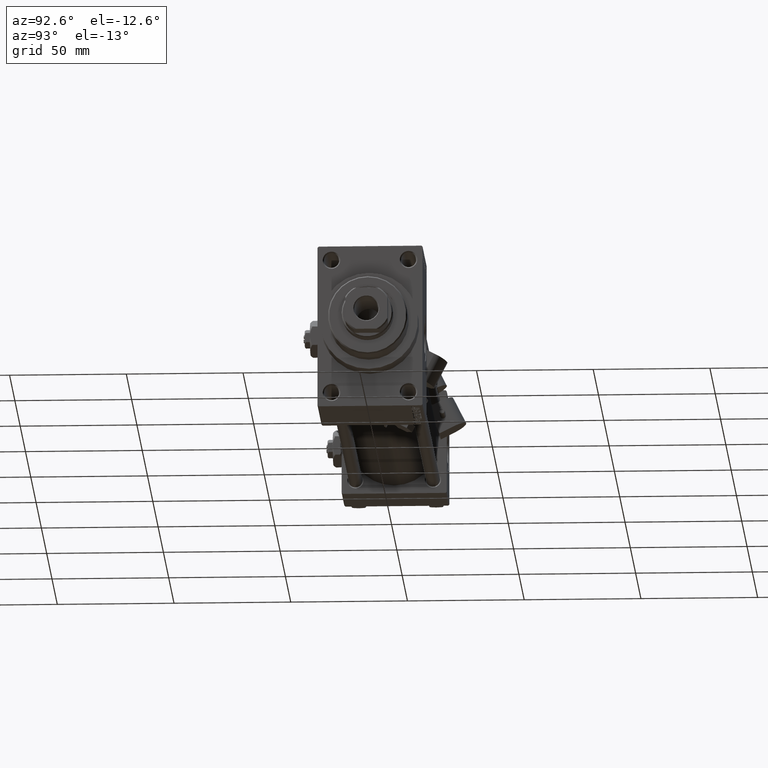
[diagram: clean part render]
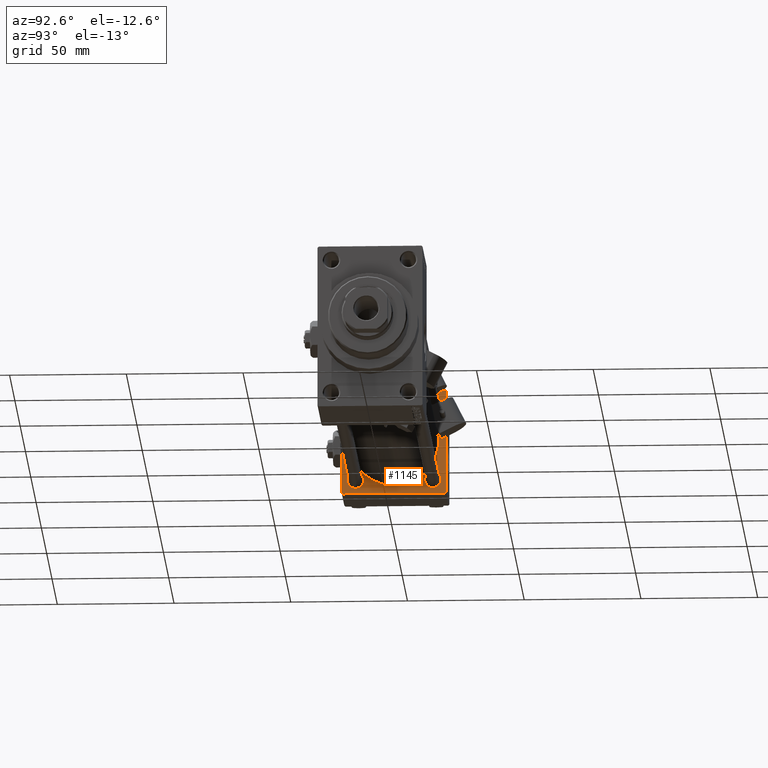
[diagram: same view with one face highlighted and labeled with its STEP entity id]
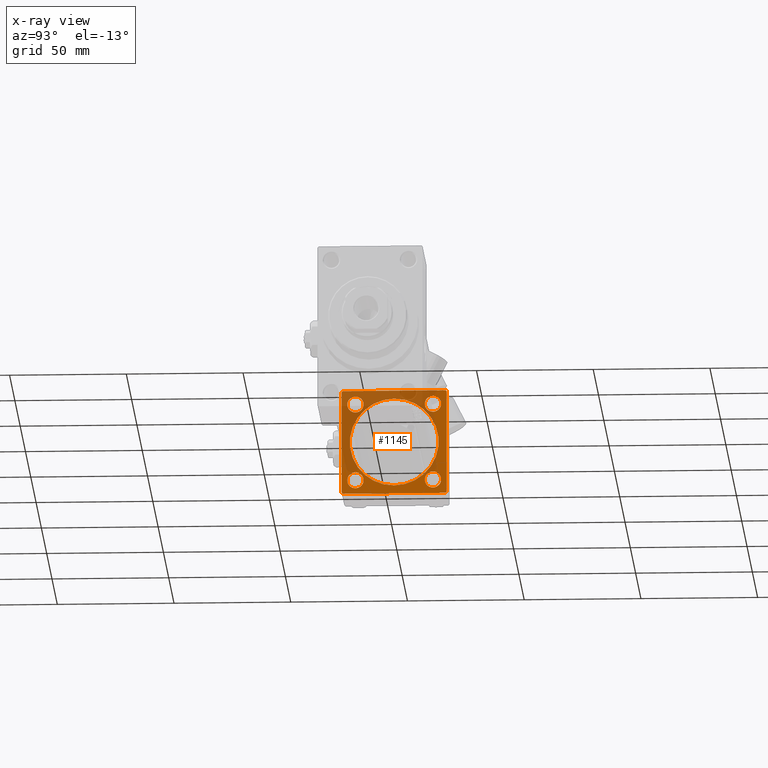
[diagram: x-ray of the same camera — body ghosted, the highlighted face saturated]
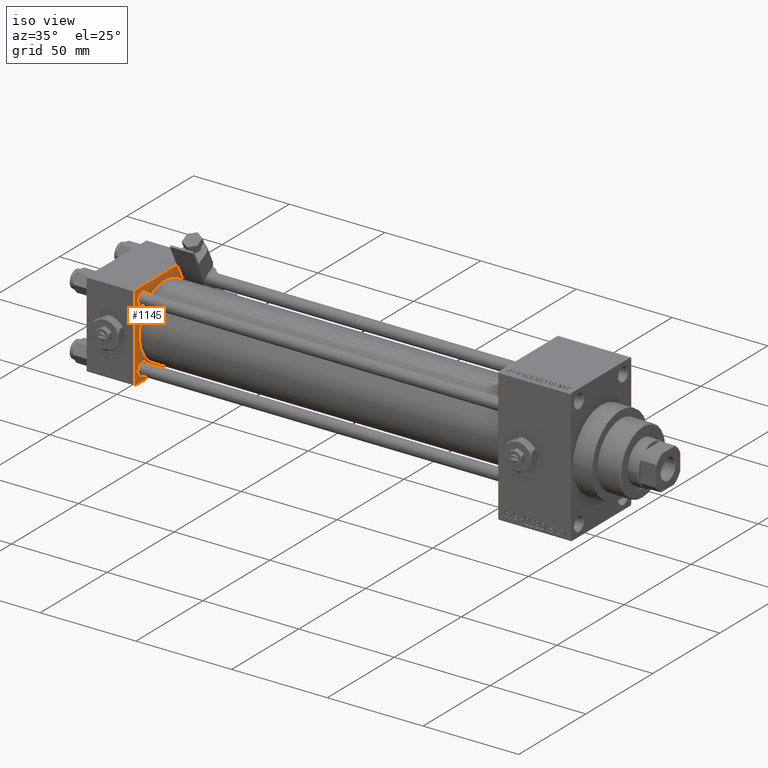
[diagram: same view with one face highlighted and labeled with its STEP entity id]
A machine part, auxiliary view. The second image highlights one B-rep face of the part: STEP entity #1145.
The next image is the same camera in x-ray: the body ghosted, the highlighted face saturated — about 46% of this face is hidden behind the body in this view.
A second angle (iso view) of the same face is appended — the face is thin or edge-on in the first view.
In plain terms, the highlighted planar face has unit normal (-1, 0, 0).
Its self-contained STEP definition (entity closure, byte-faithful):
#144 = EDGE_CURVE ( 'NONE', #49883, #3876, #7440, .T. ) ;
#197 = CARTESIAN_POINT ( 'NONE',  ( 25.00000000000000000, -21.99999999999998579, -22.50000000000000711 ) ) ;
#599 = CARTESIAN_POINT ( 'NONE',  ( 25.00000000000000000, 22.50000000000000000, -21.99999999999998224 ) ) ;
#1104 = EDGE_CURVE ( 'NONE', #25823, #12762, #6916, .T. ) ;
#1145 = ADVANCED_FACE ( 'NONE', ( #11481, #34028, #42136, #49489, #26920, #7427 ), #30969, .F. ) ;
#1404 = ORIENTED_EDGE ( 'NONE', *, *, #27930, .T. ) ;
#1473 = AXIS2_PLACEMENT_3D ( 'NONE', #17803, #33266, #48742 ) ;
#1567 = EDGE_CURVE ( 'NONE', #38884, #43466, #37309, .T. ) ;
#1682 = EDGE_CURVE ( 'NONE', #3876, #49883, #12207, .T. ) ;
#1722 = ORIENTED_EDGE ( 'NONE', *, *, #9139, .T. ) ;
#2251 = DIRECTION ( 'NONE',  ( 0.000000000000000000, -1.000000000000000000, -2.312964634635742957E-16 ) ) ;
#2853 = CARTESIAN_POINT ( 'NONE',  ( 25.00000000000000000, -22.50000000000000000, 22.50000000000000000 ) ) ;
#3351 = DIRECTION ( 'NONE',  ( -0.000000000000000000, 0.000000000000000000, 1.000000000000000000 ) ) ;
#3876 = VERTEX_POINT ( 'NONE', #17896 ) ;
#4282 = ORIENTED_EDGE ( 'NONE', *, *, #12914, .T. ) ;
#4428 = ORIENTED_EDGE ( 'NONE', *, *, #28726, .T. ) ;
#4611 = VECTOR ( 'NONE', #39602, 1000.000000000000114 ) ;
#4705 = DIRECTION ( 'NONE',  ( -1.000000000000000000, 0.000000000000000000, -0.000000000000000000 ) ) ;
#4968 = CARTESIAN_POINT ( 'NONE',  ( 25.00000000000000000, 16.59999999999999787, 13.09999999999997300 ) ) ;
#5723 = VECTOR ( 'NONE', #18557, 1000.000000000000000 ) ;
#6071 = EDGE_CURVE ( 'NONE', #14254, #45123, #36756, .T. ) ;
#6322 = VERTEX_POINT ( 'NONE', #13428 ) ;
#6423 = CARTESIAN_POINT ( 'NONE',  ( 25.00000000000000000, -16.59999999999999076, 16.60000000000000853 ) ) ;
#6797 = DIRECTION ( 'NONE',  ( 1.000000000000000000, -0.000000000000000000, 0.000000000000000000 ) ) ;
#6916 = LINE ( 'NONE', #2853, #5723 ) ;
#7427 = FACE_OUTER_BOUND ( 'NONE', #7838, .T. ) ;
#7440 = CIRCLE ( 'NONE', #24414, 3.500000000000006661 ) ;
#7550 = CIRCLE ( 'NONE', #35856, 19.00000000000000000 ) ;
#7838 = EDGE_LOOP ( 'NONE', ( #7965, #4282, #33883, #1404, #17430, #44860, #34199, #38688 ) ) ;
#7965 = ORIENTED_EDGE ( 'NONE', *, *, #49190, .F. ) ;
#8466 = LINE ( 'NONE', #599, #29688 ) ;
#8484 = LINE ( 'NONE', #28223, #45498 ) ;
#8950 = CARTESIAN_POINT ( 'NONE',  ( 25.00000000000000000, 21.99999999999999289, 22.50000000000000355 ) ) ;
#9139 = EDGE_CURVE ( 'NONE', #43466, #38884, #20674, .T. ) ;
#9516 = CIRCLE ( 'NONE', #20812, 3.500000000000031086 ) ;
#9601 = VERTEX_POINT ( 'NONE', #49662 ) ;
#9731 = DIRECTION ( 'NONE',  ( 0.000000000000000000, 0.000000000000000000, 1.000000000000000000 ) ) ;
#10551 = EDGE_CURVE ( 'NONE', #12762, #49339, #34919, .T. ) ;
#10769 = LINE ( 'NONE', #25960, #41443 ) ;
#11102 = DIRECTION ( 'NONE',  ( 0.000000000000000000, 0.000000000000000000, 1.000000000000000000 ) ) ;
#11481 = FACE_BOUND ( 'NONE', #21512, .T. ) ;
#11808 = VECTOR ( 'NONE', #38723, 1000.000000000000000 ) ;
#11835 = DIRECTION ( 'NONE',  ( 0.000000000000000000, 0.000000000000000000, 1.000000000000000000 ) ) ;
#12207 = CIRCLE ( 'NONE', #17874, 3.500000000000006661 ) ;
#12573 = CARTESIAN_POINT ( 'NONE',  ( 25.00000000000000000, 16.59999999999999787, -16.60000000000000497 ) ) ;
#12762 = VERTEX_POINT ( 'NONE', #28506 ) ;
#12914 = EDGE_CURVE ( 'NONE', #24933, #19423, #8466, .T. ) ;
#12946 = CARTESIAN_POINT ( 'NONE',  ( 24.99999999999999289, -2.602085213965210642E-15, 19.00000000000000000 ) ) ;
#13428 = CARTESIAN_POINT ( 'NONE',  ( 25.00000000000000000, -21.99999999999997868, 22.50000000000000000 ) ) ;
#13465 = CARTESIAN_POINT ( 'NONE',  ( 24.99999999999999289, -2.602085213965210642E-15, 0.000000000000000000 ) ) ;
#13787 = DIRECTION ( 'NONE',  ( 0.000000000000000000, 0.000000000000000000, 1.000000000000000000 ) ) ;
#14254 = VERTEX_POINT ( 'NONE', #4968 ) ;
#14292 = DIRECTION ( 'NONE',  ( -1.000000000000000000, 0.000000000000000000, -0.000000000000000000 ) ) ;
#14450 = EDGE_LOOP ( 'NONE', ( #20937, #33612 ) ) ;
#14774 = CARTESIAN_POINT ( 'NONE',  ( 25.00000000000000000, 0.000000000000000000, 0.000000000000000000 ) ) ;
#15451 = EDGE_LOOP ( 'NONE', ( #37636, #4428 ) ) ;
#15735 = CARTESIAN_POINT ( 'NONE',  ( 25.00000000000000000, -16.59999999999999076, 13.10000000000000142 ) ) ;
#16114 = VERTEX_POINT ( 'NONE', #42391 ) ;
#16838 = CIRCLE ( 'NONE', #27363, 3.500000000000031086 ) ;
#17254 = DIRECTION ( 'NONE',  ( 0.000000000000000000, 0.000000000000000000, 1.000000000000000000 ) ) ;
#17430 = ORIENTED_EDGE ( 'NONE', *, *, #22084, .T. ) ;
#17750 = VECTOR ( 'NONE', #40257, 1000.000000000000000 ) ;
#17803 = CARTESIAN_POINT ( 'NONE',  ( 25.00000000000000000, 16.59999999999999787, -16.60000000000000497 ) ) ;
#17874 = AXIS2_PLACEMENT_3D ( 'NONE', #6423, #14292, #25167 ) ;
#17896 = CARTESIAN_POINT ( 'NONE',  ( 25.00000000000000000, -16.59999999999999076, 20.10000000000001208 ) ) ;
#18130 = EDGE_CURVE ( 'NONE', #45123, #14254, #9516, .T. ) ;
#18557 = DIRECTION ( 'NONE',  ( 0.000000000000000000, 0.000000000000000000, -1.000000000000000000 ) ) ;
#18720 = EDGE_CURVE ( 'NONE', #9601, #16114, #33817, .T. ) ;
#19150 = DIRECTION ( 'NONE',  ( 0.000000000000000000, 0.000000000000000000, 1.000000000000000000 ) ) ;
#19423 = VERTEX_POINT ( 'NONE', #46252 ) ;
#19603 = DIRECTION ( 'NONE',  ( -0.000000000000000000, 0.7071067811865426878, 0.7071067811865524577 ) ) ;
#20483 = DIRECTION ( 'NONE',  ( 0.000000000000000000, 0.000000000000000000, 1.000000000000000000 ) ) ;
#20674 = CIRCLE ( 'NONE', #48191, 3.500000000000003109 ) ;
#20812 = AXIS2_PLACEMENT_3D ( 'NONE', #28967, #36841, #13787 ) ;
#20860 = DIRECTION ( 'NONE',  ( 0.000000000000000000, 0.000000000000000000, -1.000000000000000000 ) ) ;
#20937 = ORIENTED_EDGE ( 'NONE', *, *, #6071, .T. ) ;
#20994 = LINE ( 'NONE', #21994, #37600 ) ;
#21304 = ORIENTED_EDGE ( 'NONE', *, *, #144, .T. ) ;
#21512 = EDGE_LOOP ( 'NONE', ( #50151, #1722 ) ) ;
#21912 = AXIS2_PLACEMENT_3D ( 'NONE', #48759, #33286, #9731 ) ;
#21994 = CARTESIAN_POINT ( 'NONE',  ( 25.00000000000000000, 22.50000000000000000, -22.49999999999999645 ) ) ;
#22084 = EDGE_CURVE ( 'NONE', #24150, #6322, #24784, .T. ) ;
#22850 = DIRECTION ( 'NONE',  ( -1.000000000000000000, 0.000000000000000000, -0.000000000000000000 ) ) ;
#22944 = DIRECTION ( 'NONE',  ( -1.000000000000000000, 0.000000000000000000, -0.000000000000000000 ) ) ;
#23171 = EDGE_CURVE ( 'NONE', #42171, #31878, #43739, .T. ) ;
#24150 = VERTEX_POINT ( 'NONE', #46401 ) ;
#24414 = AXIS2_PLACEMENT_3D ( 'NONE', #27841, #28834, #20483 ) ;
#24784 = LINE ( 'NONE', #44813, #17750 ) ;
#24933 = VERTEX_POINT ( 'NONE', #32308 ) ;
#25167 = DIRECTION ( 'NONE',  ( 0.000000000000000000, 0.000000000000000000, 1.000000000000000000 ) ) ;
#25339 = VERTEX_POINT ( 'NONE', #36749 ) ;
#25823 = VERTEX_POINT ( 'NONE', #45305 ) ;
#25874 = DIRECTION ( 'NONE',  ( -1.000000000000000000, 0.000000000000000000, -0.000000000000000000 ) ) ;
#25960 = CARTESIAN_POINT ( 'NONE',  ( 25.00000000000000000, -22.50000000000000000, 22.00000000000000000 ) ) ;
#26920 = FACE_BOUND ( 'NONE', #34451, .T. ) ;
#27363 = AXIS2_PLACEMENT_3D ( 'NONE', #12573, #22944, #19150 ) ;
#27841 = CARTESIAN_POINT ( 'NONE',  ( 25.00000000000000000, -16.59999999999999076, 16.60000000000000853 ) ) ;
#27930 = EDGE_CURVE ( 'NONE', #25339, #24150, #31488, .T. ) ;
#28223 = CARTESIAN_POINT ( 'NONE',  ( 25.00000000000000000, 22.50000000000000000, 22.50000000000000355 ) ) ;
#28506 = CARTESIAN_POINT ( 'NONE',  ( 25.00000000000000000, -22.50000000000000000, -21.99999999999997158 ) ) ;
#28726 = EDGE_CURVE ( 'NONE', #16114, #9601, #16838, .T. ) ;
#28834 = DIRECTION ( 'NONE',  ( -1.000000000000000000, 0.000000000000000000, -0.000000000000000000 ) ) ;
#28967 = CARTESIAN_POINT ( 'NONE',  ( 25.00000000000000000, 16.59999999999999787, 16.60000000000000497 ) ) ;
#29688 = VECTOR ( 'NONE', #19603, 1000.000000000000000 ) ;
#30341 = CARTESIAN_POINT ( 'NONE',  ( 24.99999999999999289, -2.602085213965210642E-15, 0.000000000000000000 ) ) ;
#30350 = CARTESIAN_POINT ( 'NONE',  ( 25.00000000000000000, -21.99999999999997158, -22.50000000000000711 ) ) ;
#30969 = PLANE ( 'NONE',  #38103 ) ;
#31488 = LINE ( 'NONE', #8950, #4611 ) ;
#31878 = VERTEX_POINT ( 'NONE', #12946 ) ;
#32308 = CARTESIAN_POINT ( 'NONE',  ( 25.00000000000000000, 21.99999999999999289, -22.49999999999999645 ) ) ;
#33266 = DIRECTION ( 'NONE',  ( -1.000000000000000000, 0.000000000000000000, -0.000000000000000000 ) ) ;
#33286 = DIRECTION ( 'NONE',  ( -1.000000000000000000, 0.000000000000000000, -0.000000000000000000 ) ) ;
#33612 = ORIENTED_EDGE ( 'NONE', *, *, #18130, .T. ) ;
#33738 = CARTESIAN_POINT ( 'NONE',  ( 25.00000000000000000, 16.59999999999999787, 16.60000000000000497 ) ) ;
#33817 = CIRCLE ( 'NONE', #1473, 3.500000000000031086 ) ;
#33883 = ORIENTED_EDGE ( 'NONE', *, *, #40997, .F. ) ;
#34028 = FACE_BOUND ( 'NONE', #15451, .T. ) ;
#34199 = ORIENTED_EDGE ( 'NONE', *, *, #1104, .T. ) ;
#34451 = EDGE_LOOP ( 'NONE', ( #42578, #39003 ) ) ;
#34485 = DIRECTION ( 'NONE',  ( 0.000000000000000000, 0.000000000000000000, 1.000000000000000000 ) ) ;
#34833 = AXIS2_PLACEMENT_3D ( 'NONE', #30341, #6797, #11102 ) ;
#34919 = LINE ( 'NONE', #197, #11808 ) ;
#35537 = CARTESIAN_POINT ( 'NONE',  ( 24.99999999999999289, -2.752562955852396712E-16, -19.00000000000000000 ) ) ;
#35856 = AXIS2_PLACEMENT_3D ( 'NONE', #13465, #37270, #17254 ) ;
#36749 = CARTESIAN_POINT ( 'NONE',  ( 25.00000000000000000, 22.50000000000000000, 21.99999999999999645 ) ) ;
#36756 = CIRCLE ( 'NONE', #37562, 3.500000000000031086 ) ;
#36841 = DIRECTION ( 'NONE',  ( -1.000000000000000000, 0.000000000000000000, -0.000000000000000000 ) ) ;
#37243 = EDGE_LOOP ( 'NONE', ( #21304, #42864 ) ) ;
#37270 = DIRECTION ( 'NONE',  ( 1.000000000000000000, -0.000000000000000000, 0.000000000000000000 ) ) ;
#37309 = CIRCLE ( 'NONE', #21912, 3.500000000000003109 ) ;
#37562 = AXIS2_PLACEMENT_3D ( 'NONE', #33738, #25874, #34485 ) ;
#37600 = VECTOR ( 'NONE', #2251, 1000.000000000000000 ) ;
#37636 = ORIENTED_EDGE ( 'NONE', *, *, #18720, .T. ) ;
#38103 = AXIS2_PLACEMENT_3D ( 'NONE', #14774, #22850, #3351 ) ;
#38688 = ORIENTED_EDGE ( 'NONE', *, *, #10551, .T. ) ;
#38723 = DIRECTION ( 'NONE',  ( 0.000000000000000000, 0.7071067811865426878, -0.7071067811865524577 ) ) ;
#38884 = VERTEX_POINT ( 'NONE', #46021 ) ;
#39003 = ORIENTED_EDGE ( 'NONE', *, *, #23171, .F. ) ;
#39602 = DIRECTION ( 'NONE',  ( 0.000000000000000000, -0.7071067811865474617, 0.7071067811865474617 ) ) ;
#39628 = CARTESIAN_POINT ( 'NONE',  ( 25.00000000000000000, 16.59999999999999787, 20.10000000000003340 ) ) ;
#39739 = CARTESIAN_POINT ( 'NONE',  ( 25.00000000000000000, -16.59999999999999076, -13.10000000000000320 ) ) ;
#40257 = DIRECTION ( 'NONE',  ( 0.000000000000000000, -1.000000000000000000, -7.709882115452476934E-17 ) ) ;
#40997 = EDGE_CURVE ( 'NONE', #25339, #19423, #8484, .T. ) ;
#41443 = VECTOR ( 'NONE', #42437, 999.9999999999998863 ) ;
#42136 = FACE_BOUND ( 'NONE', #37243, .T. ) ;
#42171 = VERTEX_POINT ( 'NONE', #35537 ) ;
#42391 = CARTESIAN_POINT ( 'NONE',  ( 25.00000000000000000, 16.59999999999999787, -13.09999999999997300 ) ) ;
#42437 = DIRECTION ( 'NONE',  ( -0.000000000000000000, -0.7071067811865525687, -0.7071067811865425767 ) ) ;
#42578 = ORIENTED_EDGE ( 'NONE', *, *, #46376, .F. ) ;
#42864 = ORIENTED_EDGE ( 'NONE', *, *, #1682, .T. ) ;
#43466 = VERTEX_POINT ( 'NONE', #39739 ) ;
#43739 = CIRCLE ( 'NONE', #34833, 19.00000000000000000 ) ;
#43972 = EDGE_CURVE ( 'NONE', #6322, #25823, #10769, .T. ) ;
#44813 = CARTESIAN_POINT ( 'NONE',  ( 25.00000000000000000, 22.50000000000000000, 22.50000000000000355 ) ) ;
#44860 = ORIENTED_EDGE ( 'NONE', *, *, #43972, .T. ) ;
#45123 = VERTEX_POINT ( 'NONE', #39628 ) ;
#45305 = CARTESIAN_POINT ( 'NONE',  ( 25.00000000000000000, -22.50000000000000000, 22.00000000000000000 ) ) ;
#45498 = VECTOR ( 'NONE', #20860, 1000.000000000000000 ) ;
#46021 = CARTESIAN_POINT ( 'NONE',  ( 25.00000000000000000, -16.59999999999999076, -20.10000000000000853 ) ) ;
#46252 = CARTESIAN_POINT ( 'NONE',  ( 25.00000000000000000, 22.50000000000000000, -21.99999999999996803 ) ) ;
#46376 = EDGE_CURVE ( 'NONE', #31878, #42171, #7550, .T. ) ;
#46401 = CARTESIAN_POINT ( 'NONE',  ( 25.00000000000000000, 21.99999999999999289, 22.50000000000000355 ) ) ;
#46553 = CARTESIAN_POINT ( 'NONE',  ( 25.00000000000000000, -16.59999999999999076, -16.60000000000000853 ) ) ;
#48191 = AXIS2_PLACEMENT_3D ( 'NONE', #46553, #4705, #11835 ) ;
#48742 = DIRECTION ( 'NONE',  ( 0.000000000000000000, 0.000000000000000000, 1.000000000000000000 ) ) ;
#48759 = CARTESIAN_POINT ( 'NONE',  ( 25.00000000000000000, -16.59999999999999076, -16.60000000000000853 ) ) ;
#49190 = EDGE_CURVE ( 'NONE', #24933, #49339, #20994, .T. ) ;
#49339 = VERTEX_POINT ( 'NONE', #30350 ) ;
#49489 = FACE_BOUND ( 'NONE', #14450, .T. ) ;
#49662 = CARTESIAN_POINT ( 'NONE',  ( 25.00000000000000000, 16.59999999999999787, -20.10000000000003340 ) ) ;
#49883 = VERTEX_POINT ( 'NONE', #15735 ) ;
#50151 = ORIENTED_EDGE ( 'NONE', *, *, #1567, .T. ) ;